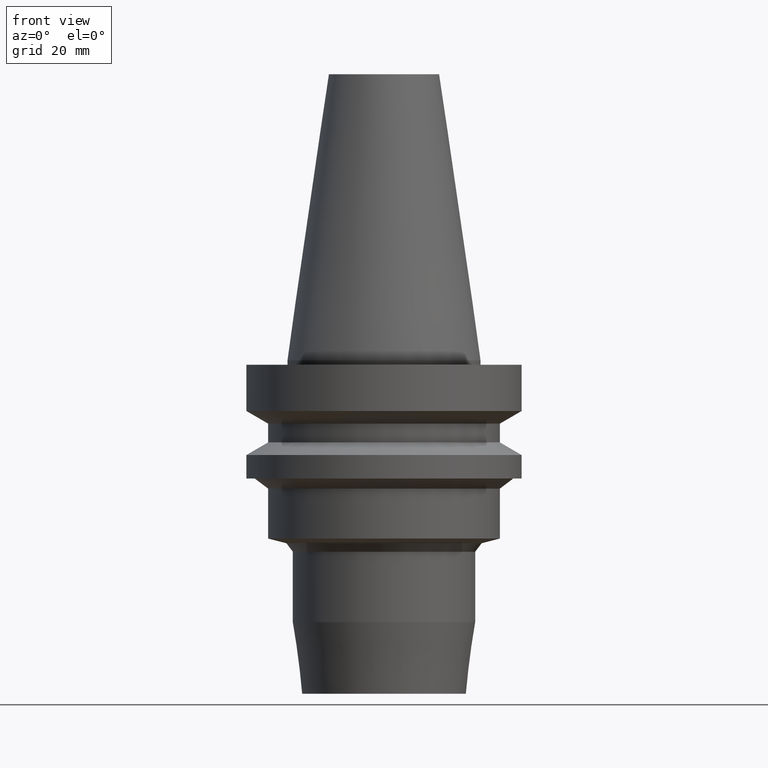
[diagram: clean part render]
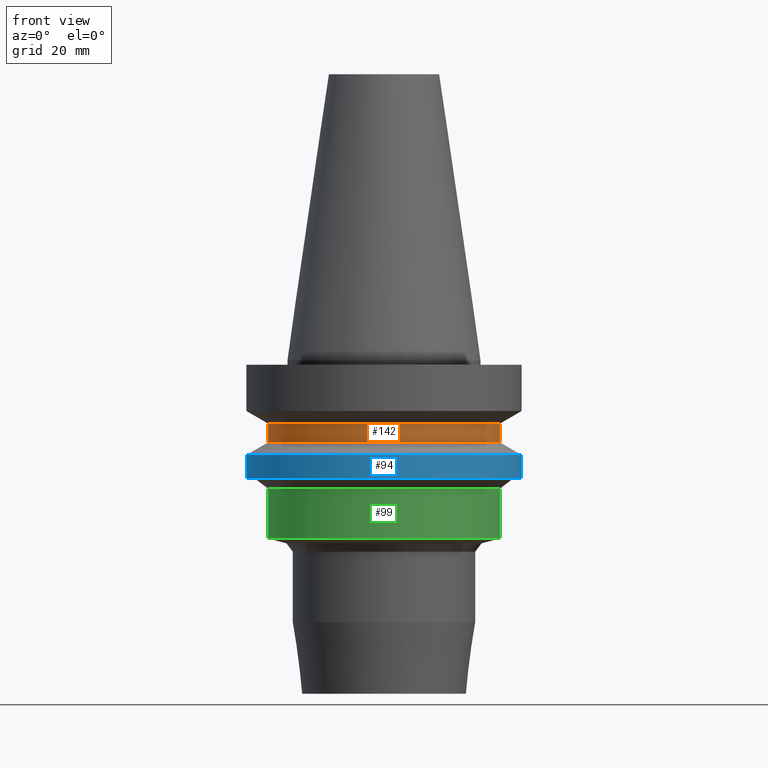
[diagram: same view with three faces highlighted in distinct colors, each labeled with its STEP entity id]
A machine part, front view with three faces highlighted in distinct colors.
Their STEP definitions:

[orange] entity #142 — the highlighted cylindrical surface (bore or boss wall) has radius 26.5 mm, axis along (0, -0, -1).
#111=EDGE_CURVE('Unnamed[1]',#244,#244,#245,.T.);
#116=EDGE_CURVE('Unnamed[1]',#252,#252,#253,.T.);
#142=ADVANCED_FACE('Unnamed[1]',(#290,#291),#292,.T.);
#244=VERTEX_POINT('',#405);
#245=CIRCLE('',#406,26.4999999999994);
#252=VERTEX_POINT('',#415);
#253=CIRCLE('',#416,26.5);
#290=FACE_BOUND('',#463,.T.);
#291=FACE_BOUND('',#464,.T.);
#292=CYLINDRICAL_SURFACE('',#465,26.4999999999997);
#405=CARTESIAN_POINT('',(8.8494551369045E-016,26.4999999999995,-14.4522569986152));
#406=AXIS2_PLACEMENT_3D('',#564,#565,#566);
#415=CARTESIAN_POINT('',(1.1479681728942E-015,26.5,-18.7477430013855));
#416=AXIS2_PLACEMENT_3D('',#573,#574,#575);
#463=EDGE_LOOP('',(#611));
#464=EDGE_LOOP('',(#612));
#465=AXIS2_PLACEMENT_3D('',#613,#614,#615);
#564=CARTESIAN_POINT('',(8.84945513690449E-016,2.29965284224378E-014,-14.4522569986152));
#565=DIRECTION('',(6.12323399573677E-017,-6.70009952006031E-016,-1.0));
#566=DIRECTION('',(3.61991244252892E-032,1.0,-6.70009952006031E-016));
#573=CARTESIAN_POINT('',(1.1479681728942E-015,2.01185100518789E-014,-18.7477430013855));
#574=DIRECTION('',(6.12323399573677E-017,-6.70009952006017E-016,-1.0));
#575=DIRECTION('',(3.61991244252884E-032,1.0,-6.70009952006017E-016));
#611=ORIENTED_EDGE('',*,*,#116,.F.);
#612=ORIENTED_EDGE('',*,*,#111,.T.);
#613=CARTESIAN_POINT('',(1.01645684329232E-015,2.15575192371583E-014,-16.6000000000003));
#614=DIRECTION('',(6.12323399573677E-017,-6.70009952006024E-016,-1.0));
#615=DIRECTION('',(3.61991244252821E-032,1.0,-6.70009952006024E-016));

[blue] entity #94 — the highlighted cylindrical surface (bore or boss wall) has radius 31.5 mm, axis along (0, -0, -1).
#58=EDGE_CURVE('Unnamed[1]',#160,#160,#161,.T.);
#60=EDGE_CURVE('Unnamed[1]',#163,#163,#164,.T.);
#94=ADVANCED_FACE('Unnamed[1]',(#216,#217),#218,.T.);
#160=VERTEX_POINT('',#301);
#161=CIRCLE('',#302,31.5000000000007);
#163=VERTEX_POINT('',#305);
#164=CIRCLE('',#306,31.5000000000004);
#216=FACE_BOUND('',#370,.T.);
#217=FACE_BOUND('',#371,.T.);
#218=CYLINDRICAL_SURFACE('',#372,31.5000000000005);
#301=CARTESIAN_POINT('',(1.32473071268174E-015,31.5000000000007,-21.6344943473346));
#302=AXIS2_PLACEMENT_3D('',#467,#468,#469);
#305=CARTESIAN_POINT('',(1.65327317884891E-015,31.5000000000004,-26.9999999999998));
#306=AXIS2_PLACEMENT_3D('',#470,#471,#472);
#370=EDGE_LOOP('',(#532));
#371=EDGE_LOOP('',(#533));
#372=AXIS2_PLACEMENT_3D('',#534,#535,#536);
#467=CARTESIAN_POINT('',(1.32473071268174E-015,1.81843579211261E-014,-21.6344943473346));
#468=DIRECTION('',(6.12323399573677E-017,-6.70009952006012E-016,-1.0));
#469=DIRECTION('',(3.61991244252829E-032,1.0,-6.70009952006012E-016));
#470=CARTESIAN_POINT('',(1.65327317884891E-015,1.45894157362957E-014,-26.9999999999997));
#471=DIRECTION('',(6.12323399573676E-017,-6.70009952006019E-016,-1.0));
#472=DIRECTION('',(3.6199124425289E-032,1.0,-6.70009952006019E-016));
#532=ORIENTED_EDGE('',*,*,#60,.F.);
#533=ORIENTED_EDGE('',*,*,#58,.T.);
#534=CARTESIAN_POINT('',(1.48900194576533E-015,1.63868868287109E-014,-24.3172471736672));
#535=DIRECTION('',(6.12323399573677E-017,-6.70009952006015E-016,-1.0));
#536=DIRECTION('',(3.61991244252831E-032,1.0,-6.70009952006015E-016));

[green] entity #99 — the highlighted cylindrical surface (bore or boss wall) has radius 26.5 mm, axis along (0, -0, -1).
#99=ADVANCED_FACE('Unnamed[1]',(#224,#225),#226,.T.);
#106=EDGE_CURVE('Unnamed[1]',#236,#236,#237,.T.);
#121=EDGE_CURVE('Unnamed[1]',#260,#260,#261,.T.);
#224=FACE_BOUND('',#380,.T.);
#225=FACE_BOUND('',#381,.T.);
#226=CYLINDRICAL_SURFACE('',#382,26.5);
#236=VERTEX_POINT('',#395);
#237=CIRCLE('',#396,26.5);
#260=VERTEX_POINT('',#425);
#261=CIRCLE('',#426,26.5);
#380=EDGE_LOOP('',(#541));
#381=EDGE_LOOP('',(#542));
#382=AXIS2_PLACEMENT_3D('',#543,#544,#545);
#395=CARTESIAN_POINT('',(1.79468911203177E-015,26.5,-29.3094974531644));
#396=AXIS2_PLACEMENT_3D('',#555,#556,#557);
#425=CARTESIAN_POINT('',(2.49377128932141E-015,26.5,-40.7263758180345));
#426=AXIS2_PLACEMENT_3D('',#582,#583,#584);
#541=ORIENTED_EDGE('',*,*,#121,.F.);
#542=ORIENTED_EDGE('',*,*,#106,.T.);
#543=CARTESIAN_POINT('',(2.14423020067659E-015,9.21731839588993E-015,-35.0179366355995));
#544=DIRECTION('',(6.12323399573677E-017,-6.70009952006017E-016,-1.0));
#545=DIRECTION('',(3.61991244252885E-032,1.0,-6.70009952006017E-016));
#555=CARTESIAN_POINT('',(1.79468911203176E-015,1.30420294585427E-014,-29.3094974531644));
#556=DIRECTION('',(6.12323399573677E-017,-6.70009952006017E-016,-1.0));
#557=DIRECTION('',(3.61991244252817E-032,1.0,-6.70009952006017E-016));
#582=CARTESIAN_POINT('',(2.49377128932141E-015,5.39260733323711E-015,-40.7263758180345));
#583=DIRECTION('',(6.12323399573677E-017,-6.70009952006018E-016,-1.0));
#584=DIRECTION('',(3.61991244252817E-032,1.0,-6.70009952006018E-016));